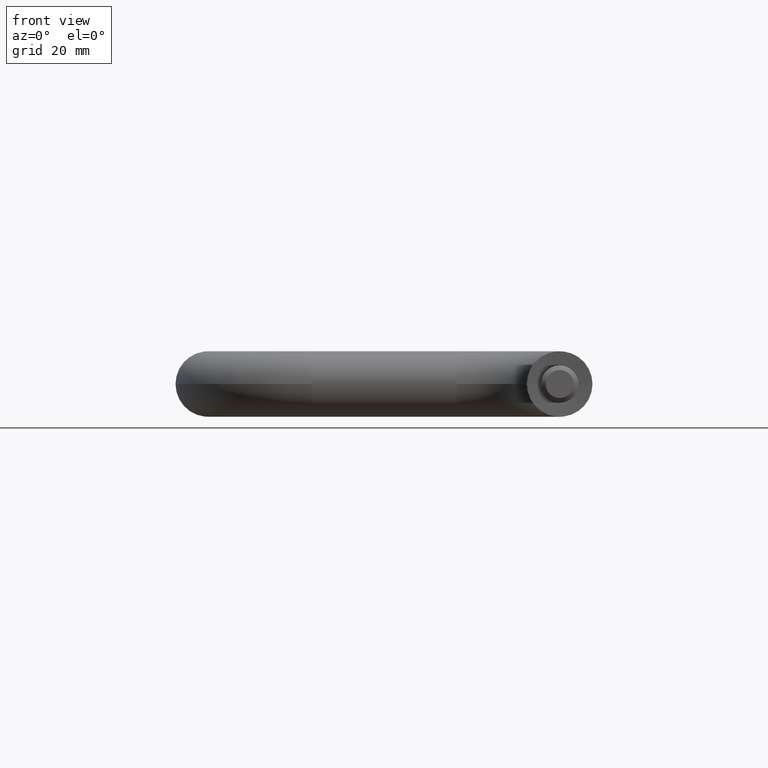
[diagram: clean part render]
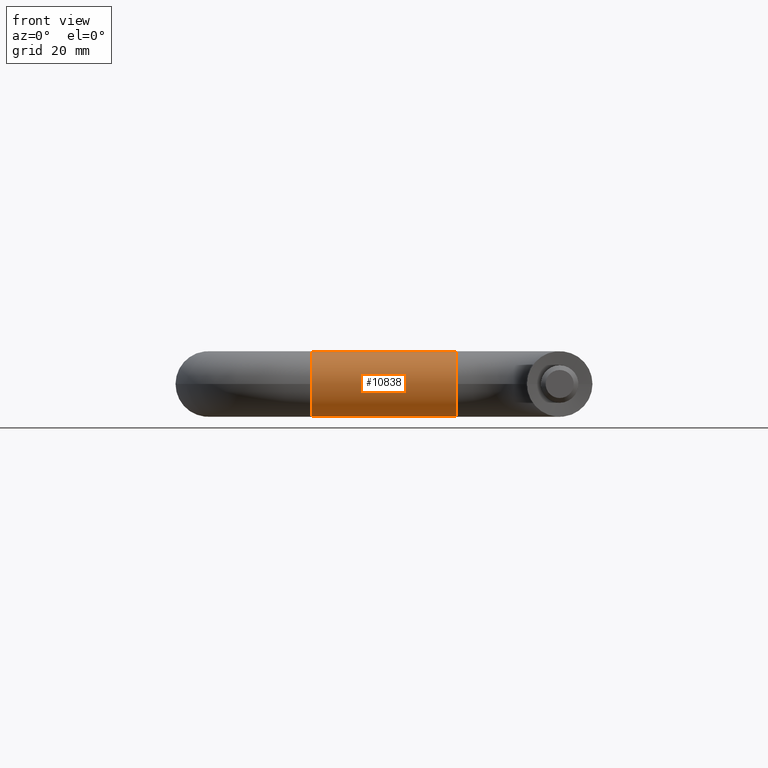
[diagram: same view with one face highlighted and labeled with its STEP entity id]
A machine part, front view. The second image highlights one B-rep face of the part: STEP entity #10838.
In plain terms, the highlighted cylindrical surface (edge-blend (fillet) strip) has radius 7 mm, axis along (-1, 0, 0).
Its self-contained STEP definition (entity closure, byte-faithful):
#42 = DIRECTION ( 'NONE',  ( -1.000000000000000000, -1.608122649676636600E-016, 0.0000000000000000000 ) ) ;
#271 = DIRECTION ( 'NONE',  ( -1.000000000000000000, 0.0000000000000000000, 0.0000000000000000000 ) ) ;
#462 = CIRCLE ( 'NONE', #1030, 7.000000000000000000 ) ;
#694 = AXIS2_PLACEMENT_3D ( 'NONE', #5156, #1152, #1061 ) ;
#803 = EDGE_CURVE ( 'NONE', #2572, #3371, #9571, .T. ) ;
#1030 = AXIS2_PLACEMENT_3D ( 'NONE', #9351, #3187, #6296 ) ;
#1061 = DIRECTION ( 'NONE',  ( 0.0000000000000000000, 0.0000000000000000000, 1.000000000000000000 ) ) ;
#1152 = DIRECTION ( 'NONE',  ( -1.000000000000000000, 0.0000000000000000000, 0.0000000000000000000 ) ) ;
#1187 = VERTEX_POINT ( 'NONE', #3251 ) ;
#1313 = ORIENTED_EDGE ( 'NONE', *, *, #3331, .T. ) ;
#1660 = LINE ( 'NONE', #4433, #12648 ) ;
#2387 = EDGE_CURVE ( 'NONE', #6892, #1187, #462, .T. ) ;
#2572 = VERTEX_POINT ( 'NONE', #11274 ) ;
#3187 = DIRECTION ( 'NONE',  ( -1.000000000000000000, -1.608122649676636600E-016, 0.0000000000000000000 ) ) ;
#3224 = CARTESIAN_POINT ( 'NONE',  ( -22.00000000000000400, 30.50000000000000700, -8.572527594031470200E-016 ) ) ;
#3251 = CARTESIAN_POINT ( 'NONE',  ( -22.00000000000000400, 37.50000000000000700, 7.000000000000000000 ) ) ;
#3320 = ORIENTED_EDGE ( 'NONE', *, *, #11602, .T. ) ;
#3331 = EDGE_CURVE ( 'NONE', #1187, #3371, #12756, .T. ) ;
#3371 = VERTEX_POINT ( 'NONE', #5897 ) ;
#3611 = VERTEX_POINT ( 'NONE', #8356 ) ;
#4433 = CARTESIAN_POINT ( 'NONE',  ( -22.00000000000000400, 37.50000000000000700, -7.000000000000000000 ) ) ;
#4555 = CARTESIAN_POINT ( 'NONE',  ( -22.00000000000000400, 37.50000000000000700, 7.000000000000000000 ) ) ;
#5156 = CARTESIAN_POINT ( 'NONE',  ( -22.00000000000000400, 37.50000000000000700, 0.0000000000000000000 ) ) ;
#5284 = CIRCLE ( 'NONE', #10784, 7.000000000000000000 ) ;
#5389 = DIRECTION ( 'NONE',  ( 0.0000000000000000000, 0.0000000000000000000, 1.000000000000000000 ) ) ;
#5518 = VERTEX_POINT ( 'NONE', #6062 ) ;
#5897 = CARTESIAN_POINT ( 'NONE',  ( -53.00000000000000000, 37.50000000000000700, 7.000000000000000000 ) ) ;
#6062 = CARTESIAN_POINT ( 'NONE',  ( -22.00000000000000400, 37.50000000000000700, -7.000000000000000000 ) ) ;
#6153 = DIRECTION ( 'NONE',  ( -1.000000000000000000, -1.608122649676636600E-016, 0.0000000000000000000 ) ) ;
#6227 = EDGE_LOOP ( 'NONE', ( #6310, #3320, #8926, #1313, #10627, #13331 ) ) ;
#6296 = DIRECTION ( 'NONE',  ( 0.0000000000000000000, 0.0000000000000000000, 1.000000000000000000 ) ) ;
#6310 = ORIENTED_EDGE ( 'NONE', *, *, #10103, .F. ) ;
#6892 = VERTEX_POINT ( 'NONE', #3224 ) ;
#6927 = CARTESIAN_POINT ( 'NONE',  ( -53.00000000000000000, 37.50000000000000700, 0.0000000000000000000 ) ) ;
#7267 = VECTOR ( 'NONE', #11954, 1000.000000000000000 ) ;
#7466 = AXIS2_PLACEMENT_3D ( 'NONE', #6927, #6153, #13396 ) ;
#7989 = CIRCLE ( 'NONE', #7466, 7.000000000000000000 ) ;
#8158 = CARTESIAN_POINT ( 'NONE',  ( -22.00000000000000400, 37.50000000000000700, 0.0000000000000000000 ) ) ;
#8356 = CARTESIAN_POINT ( 'NONE',  ( -53.00000000000000000, 37.50000000000000700, -7.000000000000000000 ) ) ;
#8703 = EDGE_CURVE ( 'NONE', #3611, #2572, #7989, .T. ) ;
#8926 = ORIENTED_EDGE ( 'NONE', *, *, #2387, .T. ) ;
#9351 = CARTESIAN_POINT ( 'NONE',  ( -22.00000000000000400, 37.50000000000000700, 0.0000000000000000000 ) ) ;
#9571 = CIRCLE ( 'NONE', #12972, 7.000000000000000000 ) ;
#10103 = EDGE_CURVE ( 'NONE', #5518, #3611, #1660, .T. ) ;
#10612 = CYLINDRICAL_SURFACE ( 'NONE', #694, 7.000000000000000000 ) ;
#10627 = ORIENTED_EDGE ( 'NONE', *, *, #803, .F. ) ;
#10784 = AXIS2_PLACEMENT_3D ( 'NONE', #8158, #42, #13436 ) ;
#10786 = FACE_OUTER_BOUND ( 'NONE', #6227, .T. ) ;
#10838 = ADVANCED_FACE ( 'NONE', ( #10786 ), #10612, .T. ) ;
#11274 = CARTESIAN_POINT ( 'NONE',  ( -52.99999999999999300, 30.50000000000000700, 0.0000000000000000000 ) ) ;
#11602 = EDGE_CURVE ( 'NONE', #5518, #6892, #5284, .T. ) ;
#11667 = CARTESIAN_POINT ( 'NONE',  ( -53.00000000000000000, 37.50000000000000700, 0.0000000000000000000 ) ) ;
#11954 = DIRECTION ( 'NONE',  ( -1.000000000000000000, 0.0000000000000000000, 0.0000000000000000000 ) ) ;
#12596 = DIRECTION ( 'NONE',  ( -1.000000000000000000, -1.608122649676636600E-016, 0.0000000000000000000 ) ) ;
#12648 = VECTOR ( 'NONE', #271, 1000.000000000000000 ) ;
#12756 = LINE ( 'NONE', #4555, #7267 ) ;
#12972 = AXIS2_PLACEMENT_3D ( 'NONE', #11667, #12596, #5389 ) ;
#13331 = ORIENTED_EDGE ( 'NONE', *, *, #8703, .F. ) ;
#13396 = DIRECTION ( 'NONE',  ( 0.0000000000000000000, 0.0000000000000000000, 1.000000000000000000 ) ) ;
#13436 = DIRECTION ( 'NONE',  ( 0.0000000000000000000, 0.0000000000000000000, 1.000000000000000000 ) ) ;